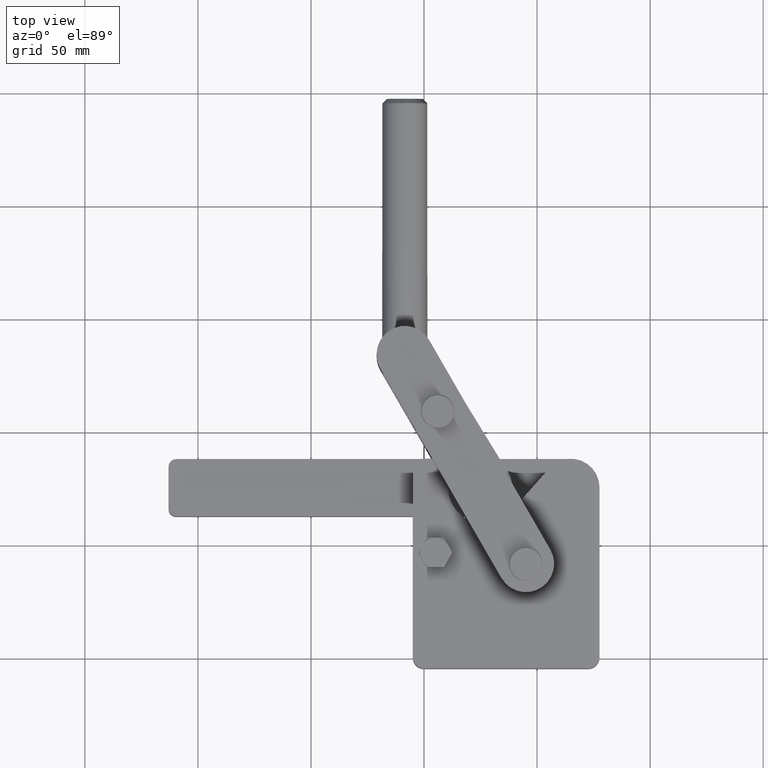
[diagram: clean part render]
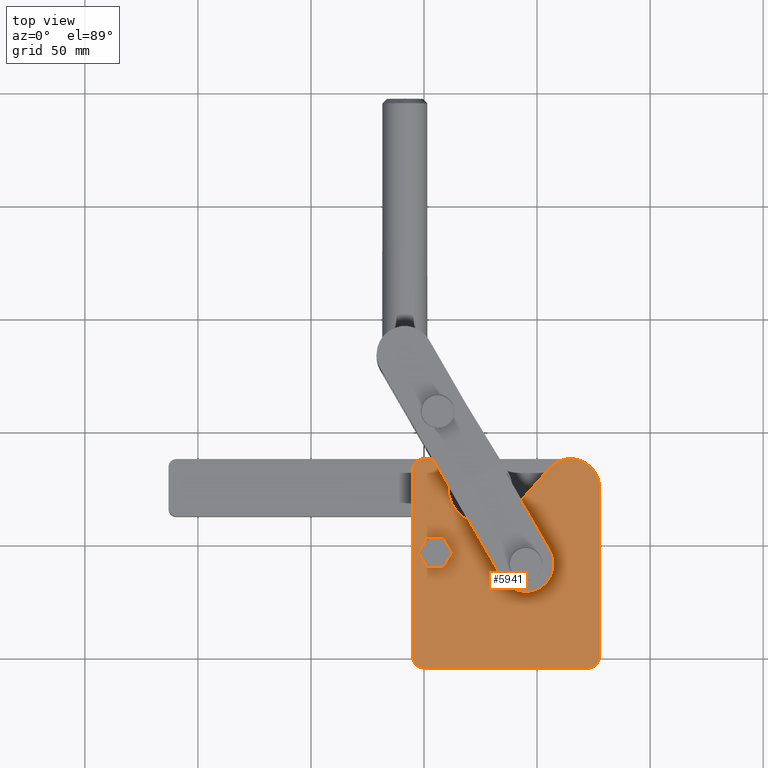
[diagram: same view with one face highlighted and labeled with its STEP entity id]
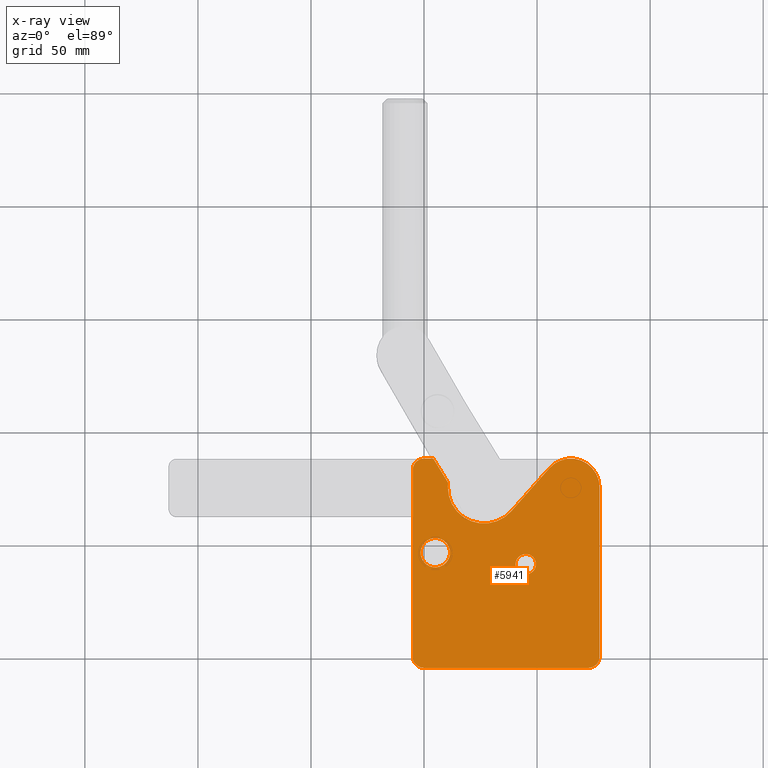
[diagram: x-ray of the same camera — body ghosted, the highlighted face saturated]
A machine part, top view. The second image highlights one B-rep face of the part: STEP entity #5941.
The next image is the same camera in x-ray: the body ghosted, the highlighted face saturated — about 0% of this face is hidden behind the body in this view.
In plain terms, the highlighted planar face has unit normal (0, 0, 1).
Its self-contained STEP definition (entity closure, byte-faithful):
#82 = AXIS2_PLACEMENT_3D ( 'NONE', #6227, #2781, #6799 ) ;
#354 = AXIS2_PLACEMENT_3D ( 'NONE', #4677, #796, #7289 ) ;
#440 = ORIENTED_EDGE ( 'NONE', *, *, #3191, .T. ) ;
#465 = EDGE_CURVE ( 'NONE', #3337, #3671, #1439, .T. ) ;
#468 = DIRECTION ( 'NONE',  ( -0.5224985647159494700, 0.8526401643540918500, 0.0000000000000000000 ) ) ;
#475 = ORIENTED_EDGE ( 'NONE', *, *, #7211, .T. ) ;
#651 = LINE ( 'NONE', #6948, #2214 ) ;
#672 = ORIENTED_EDGE ( 'NONE', *, *, #4379, .T. ) ;
#703 = VERTEX_POINT ( 'NONE', #6116 ) ;
#723 = CARTESIAN_POINT ( 'NONE',  ( 26.56000000000001300, 74.90000000000002000, 8.000000000000000000 ) ) ;
#732 = ORIENTED_EDGE ( 'NONE', *, *, #1823, .T. ) ;
#735 = DIRECTION ( 'NONE',  ( 0.0000000000000000000, 0.0000000000000000000, 1.000000000000000000 ) ) ;
#755 = FACE_BOUND ( 'NONE', #6163, .T. ) ;
#796 = DIRECTION ( 'NONE',  ( 0.0000000000000000000, 0.0000000000000000000, 1.000000000000000000 ) ) ;
#820 = VERTEX_POINT ( 'NONE', #2535 ) ;
#1011 = VERTEX_POINT ( 'NONE', #2901 ) ;
#1027 = VERTEX_POINT ( 'NONE', #5774 ) ;
#1106 = CARTESIAN_POINT ( 'NONE',  ( 0.0000000000000000000, 82.60000000000003700, 8.000000000000000000 ) ) ;
#1124 = EDGE_CURVE ( 'NONE', #1027, #1345, #3311, .T. ) ;
#1171 = CARTESIAN_POINT ( 'NONE',  ( 77.59999999999999400, 74.90000000000002000, 8.000000000000000000 ) ) ;
#1176 = DIRECTION ( 'NONE',  ( 0.0000000000000000000, 0.0000000000000000000, 1.000000000000000000 ) ) ;
#1328 = DIRECTION ( 'NONE',  ( 1.000000000000000000, 0.0000000000000000000, 0.0000000000000000000 ) ) ;
#1345 = VERTEX_POINT ( 'NONE', #1860 ) ;
#1439 = LINE ( 'NONE', #1171, #2783 ) ;
#1445 = VERTEX_POINT ( 'NONE', #4633 ) ;
#1491 = VERTEX_POINT ( 'NONE', #4062 ) ;
#1572 = EDGE_CURVE ( 'NONE', #820, #4457, #4650, .T. ) ;
#1577 = VERTEX_POINT ( 'NONE', #2362 ) ;
#1622 = AXIS2_PLACEMENT_3D ( 'NONE', #1106, #5139, #1697 ) ;
#1658 = ORIENTED_EDGE ( 'NONE', *, *, #3796, .T. ) ;
#1688 = CIRCLE ( 'NONE', #3625, 6.500000000000000900 ) ;
#1697 = DIRECTION ( 'NONE',  ( 1.000000000000000000, 0.0000000000000000000, 0.0000000000000000000 ) ) ;
#1817 = DIRECTION ( 'NONE',  ( 1.000000000000000000, 0.0000000000000000000, 0.0000000000000000000 ) ) ;
#1823 = EDGE_CURVE ( 'NONE', #3671, #820, #1968, .T. ) ;
#1825 = CARTESIAN_POINT ( 'NONE',  ( 5.000000000000004400, 46.00000000000000000, 8.000000000000000000 ) ) ;
#1830 = DIRECTION ( 'NONE',  ( -0.0000000000000000000, -0.0000000000000000000, -1.000000000000000000 ) ) ;
#1838 = ORIENTED_EDGE ( 'NONE', *, *, #1124, .F. ) ;
#1852 = CARTESIAN_POINT ( 'NONE',  ( 38.53704747000520600, 64.29102578468389600, 8.000000000000000000 ) ) ;
#1860 = CARTESIAN_POINT ( 'NONE',  ( 49.50000000000000700, 40.90000000000000600, 8.000000000000000000 ) ) ;
#1934 = VERTEX_POINT ( 'NONE', #5357 ) ;
#1968 = CIRCLE ( 'NONE', #354, 12.69999999999998900 ) ;
#2214 = VECTOR ( 'NONE', #2924, 1000.000000000000000 ) ;
#2258 = VERTEX_POINT ( 'NONE', #4883 ) ;
#2341 = CARTESIAN_POINT ( 'NONE',  ( 26.56000000000001300, 74.90000000000002000, 8.000000000000000000 ) ) ;
#2362 = CARTESIAN_POINT ( 'NONE',  ( -4.999999999999990200, 0.0000000000000000000, 8.000000000000000000 ) ) ;
#2378 = DIRECTION ( 'NONE',  ( 0.8660254038267022300, -0.4999999999267971700, 0.0000000000000000000 ) ) ;
#2490 = AXIS2_PLACEMENT_3D ( 'NONE', #2341, #6374, #2921 ) ;
#2507 = ORIENTED_EDGE ( 'NONE', *, *, #7441, .T. ) ;
#2535 = CARTESIAN_POINT ( 'NONE',  ( 55.39321857068337400, 83.32087328340718100, 8.000000000000000000 ) ) ;
#2618 = EDGE_CURVE ( 'NONE', #1934, #1577, #651, .T. ) ;
#2647 = DIRECTION ( 'NONE',  ( 0.0000000000000000000, 0.0000000000000000000, 1.000000000000000000 ) ) ;
#2679 = LINE ( 'NONE', #4459, #5738 ) ;
#2691 = CIRCLE ( 'NONE', #7035, 4.499999999999997300 ) ;
#2715 = CARTESIAN_POINT ( 'NONE',  ( -9.184850993605130200E-016, -4.999999999999990200, 8.000000000000000000 ) ) ;
#2781 = DIRECTION ( 'NONE',  ( 0.0000000000000000000, 0.0000000000000000000, 1.000000000000000000 ) ) ;
#2783 = VECTOR ( 'NONE', #7479, 1000.000000000000000 ) ;
#2901 = CARTESIAN_POINT ( 'NONE',  ( 10.62916512487357000, 42.75000000047581500, 8.000000000000000000 ) ) ;
#2921 = DIRECTION ( 'NONE',  ( 1.000000000000000000, 0.0000000000000000000, 0.0000000000000000000 ) ) ;
#2924 = DIRECTION ( 'NONE',  ( 0.0000000000000000000, -1.000000000000000000, 0.0000000000000000000 ) ) ;
#3005 = AXIS2_PLACEMENT_3D ( 'NONE', #723, #4785, #1328 ) ;
#3102 = VECTOR ( 'NONE', #6938, 1000.000000000000100 ) ;
#3140 = ORIENTED_EDGE ( 'NONE', *, *, #5096, .T. ) ;
#3191 = EDGE_CURVE ( 'NONE', #1577, #4697, #3969, .T. ) ;
#3219 = AXIS2_PLACEMENT_3D ( 'NONE', #4214, #735, #4793 ) ;
#3252 = VERTEX_POINT ( 'NONE', #6563 ) ;
#3311 = CIRCLE ( 'NONE', #6159, 4.499999999999997300 ) ;
#3317 = VECTOR ( 'NONE', #468, 1000.000000000000000 ) ;
#3337 = VERTEX_POINT ( 'NONE', #3757 ) ;
#3385 = PLANE ( 'NONE',  #4938 ) ;
#3413 = DIRECTION ( 'NONE',  ( 0.0000000000000000000, 0.0000000000000000000, 1.000000000000000000 ) ) ;
#3492 = LINE ( 'NONE', #3932, #3317 ) ;
#3581 = ORIENTED_EDGE ( 'NONE', *, *, #5233, .F. ) ;
#3625 = AXIS2_PLACEMENT_3D ( 'NONE', #1825, #5841, #2378 ) ;
#3656 = AXIS2_PLACEMENT_3D ( 'NONE', #5260, #1830, #5845 ) ;
#3671 = VERTEX_POINT ( 'NONE', #5033 ) ;
#3726 = EDGE_CURVE ( 'NONE', #1491, #4944, #3492, .T. ) ;
#3757 = CARTESIAN_POINT ( 'NONE',  ( 77.60000000000000900, 0.0000000000000000000, 8.000000000000000000 ) ) ;
#3796 = EDGE_CURVE ( 'NONE', #4697, #3252, #6988, .T. ) ;
#3813 = CARTESIAN_POINT ( 'NONE',  ( 38.53704747000520600, 64.29102578468389600, 8.000000000000000000 ) ) ;
#3932 = CARTESIAN_POINT ( 'NONE',  ( 10.68298516722995800, 76.88000000000003800, 8.000000000000000000 ) ) ;
#3969 = CIRCLE ( 'NONE', #3219, 4.999999999999990200 ) ;
#4041 = CIRCLE ( 'NONE', #82, 4.999999999999990200 ) ;
#4062 = CARTESIAN_POINT ( 'NONE',  ( 10.68298516722996200, 76.88000000000003800, 8.000000000000000000 ) ) ;
#4214 = CARTESIAN_POINT ( 'NONE',  ( 0.0000000000000000000, 0.0000000000000000000, 8.000000000000000000 ) ) ;
#4329 = EDGE_CURVE ( 'NONE', #2258, #1491, #6974, .T. ) ;
#4379 = EDGE_CURVE ( 'NONE', #703, #1011, #6619, .T. ) ;
#4457 = VERTEX_POINT ( 'NONE', #1852 ) ;
#4459 = CARTESIAN_POINT ( 'NONE',  ( 4.113760718369871200, 87.60000000000003700, 8.000000000000000000 ) ) ;
#4608 = ORIENTED_EDGE ( 'NONE', *, *, #465, .T. ) ;
#4613 = ORIENTED_EDGE ( 'NONE', *, *, #2618, .T. ) ;
#4622 = CARTESIAN_POINT ( 'NONE',  ( 45.00000000000001400, 40.90000000000000600, 8.000000000000000000 ) ) ;
#4633 = CARTESIAN_POINT ( 'NONE',  ( 0.0000000000000000000, 87.60000000000003700, 8.000000000000000000 ) ) ;
#4650 = LINE ( 'NONE', #3813, #3102 ) ;
#4677 = CARTESIAN_POINT ( 'NONE',  ( 64.90000000000000600, 74.90000000000002000, 8.000000000000000000 ) ) ;
#4681 = CARTESIAN_POINT ( 'NONE',  ( 0.0000000000000000000, -4.999999999999990200, 8.000000000000000000 ) ) ;
#4695 = EDGE_LOOP ( 'NONE', ( #475, #4613, #440, #1658, #5690, #4608, #732, #5239, #2507, #6892, #4812, #3140 ) ) ;
#4697 = VERTEX_POINT ( 'NONE', #2715 ) ;
#4785 = DIRECTION ( 'NONE',  ( -0.0000000000000000000, -0.0000000000000000000, -1.000000000000000000 ) ) ;
#4793 = DIRECTION ( 'NONE',  ( 1.000000000000000000, 0.0000000000000000000, 0.0000000000000000000 ) ) ;
#4812 = ORIENTED_EDGE ( 'NONE', *, *, #3726, .T. ) ;
#4864 = ORIENTED_EDGE ( 'NONE', *, *, #6049, .T. ) ;
#4883 = CARTESIAN_POINT ( 'NONE',  ( 10.56000000000000800, 74.90000000000002000, 8.000000000000000000 ) ) ;
#4938 = AXIS2_PLACEMENT_3D ( 'NONE', #6844, #3413, #7435 ) ;
#4944 = VERTEX_POINT ( 'NONE', #5394 ) ;
#5033 = CARTESIAN_POINT ( 'NONE',  ( 77.59999999999999400, 74.90000000000002000, 8.000000000000000000 ) ) ;
#5096 = EDGE_CURVE ( 'NONE', #4944, #1445, #2679, .T. ) ;
#5139 = DIRECTION ( 'NONE',  ( 0.0000000000000000000, 0.0000000000000000000, 1.000000000000000000 ) ) ;
#5144 = EDGE_CURVE ( 'NONE', #3252, #3337, #4041, .T. ) ;
#5185 = DIRECTION ( 'NONE',  ( 1.000000000000000000, 0.0000000000000000000, 0.0000000000000000000 ) ) ;
#5233 = EDGE_CURVE ( 'NONE', #1345, #1027, #2691, .T. ) ;
#5239 = ORIENTED_EDGE ( 'NONE', *, *, #1572, .T. ) ;
#5260 = CARTESIAN_POINT ( 'NONE',  ( 5.000000000000004400, 46.00000000000000000, 8.000000000000000000 ) ) ;
#5280 = VECTOR ( 'NONE', #1817, 1000.000000000000000 ) ;
#5357 = CARTESIAN_POINT ( 'NONE',  ( -4.999999999999990200, 82.60000000000003700, 8.000000000000000000 ) ) ;
#5368 = FACE_BOUND ( 'NONE', #5410, .T. ) ;
#5394 = CARTESIAN_POINT ( 'NONE',  ( 4.113760718369871200, 87.60000000000003700, 8.000000000000000000 ) ) ;
#5410 = EDGE_LOOP ( 'NONE', ( #4864, #672 ) ) ;
#5690 = ORIENTED_EDGE ( 'NONE', *, *, #5144, .T. ) ;
#5707 = CIRCLE ( 'NONE', #1622, 4.999999999999997300 ) ;
#5738 = VECTOR ( 'NONE', #6696, 1000.000000000000000 ) ;
#5774 = CARTESIAN_POINT ( 'NONE',  ( 40.50000000000001400, 40.90000000000000600, 8.000000000000000000 ) ) ;
#5841 = DIRECTION ( 'NONE',  ( -0.0000000000000000000, -0.0000000000000000000, -1.000000000000000000 ) ) ;
#5845 = DIRECTION ( 'NONE',  ( 0.8660254038267022300, -0.4999999999267971700, 0.0000000000000000000 ) ) ;
#5941 = ADVANCED_FACE ( 'NONE', ( #5368, #6714, #755 ), #3385, .T. ) ;
#6049 = EDGE_CURVE ( 'NONE', #1011, #703, #1688, .T. ) ;
#6101 = CARTESIAN_POINT ( 'NONE',  ( 45.00000000000001400, 40.90000000000000600, 8.000000000000000000 ) ) ;
#6116 = CARTESIAN_POINT ( 'NONE',  ( -0.6291651248735603600, 49.24999999952417800, 8.000000000000000000 ) ) ;
#6159 = AXIS2_PLACEMENT_3D ( 'NONE', #6101, #2647, #6674 ) ;
#6163 = EDGE_LOOP ( 'NONE', ( #3581, #1838 ) ) ;
#6227 = CARTESIAN_POINT ( 'NONE',  ( 72.60000000000000900, 0.0000000000000000000, 8.000000000000000000 ) ) ;
#6374 = DIRECTION ( 'NONE',  ( -0.0000000000000000000, -0.0000000000000000000, -1.000000000000000000 ) ) ;
#6418 = CIRCLE ( 'NONE', #3005, 16.00000000000000700 ) ;
#6563 = CARTESIAN_POINT ( 'NONE',  ( 72.60000000000000900, -4.999999999999990200, 8.000000000000000000 ) ) ;
#6619 = CIRCLE ( 'NONE', #3656, 6.500000000000000900 ) ;
#6674 = DIRECTION ( 'NONE',  ( 1.000000000000000000, 0.0000000000000000000, 0.0000000000000000000 ) ) ;
#6696 = DIRECTION ( 'NONE',  ( -1.000000000000000000, 0.0000000000000000000, 0.0000000000000000000 ) ) ;
#6714 = FACE_OUTER_BOUND ( 'NONE', #4695, .T. ) ;
#6799 = DIRECTION ( 'NONE',  ( 1.000000000000000000, 0.0000000000000000000, 0.0000000000000000000 ) ) ;
#6844 = CARTESIAN_POINT ( 'NONE',  ( 0.0000000000000000000, 82.60000000000003700, 8.000000000000000000 ) ) ;
#6892 = ORIENTED_EDGE ( 'NONE', *, *, #4329, .T. ) ;
#6938 = DIRECTION ( 'NONE',  ( -0.6630608884572553000, -0.7485654668753263200, -0.0000000000000000000 ) ) ;
#6948 = CARTESIAN_POINT ( 'NONE',  ( -4.999999999999990200, 82.60000000000003700, 8.000000000000000000 ) ) ;
#6974 = CIRCLE ( 'NONE', #2490, 16.00000000000000700 ) ;
#6988 = LINE ( 'NONE', #4681, #5280 ) ;
#7035 = AXIS2_PLACEMENT_3D ( 'NONE', #4622, #1176, #5185 ) ;
#7211 = EDGE_CURVE ( 'NONE', #1445, #1934, #5707, .T. ) ;
#7289 = DIRECTION ( 'NONE',  ( 1.000000000000000000, 0.0000000000000000000, 0.0000000000000000000 ) ) ;
#7435 = DIRECTION ( 'NONE',  ( 1.000000000000000000, 0.0000000000000000000, -0.0000000000000000000 ) ) ;
#7441 = EDGE_CURVE ( 'NONE', #4457, #2258, #6418, .T. ) ;
#7479 = DIRECTION ( 'NONE',  ( -0.0000000000000000000, 1.000000000000000000, -0.0000000000000000000 ) ) ;